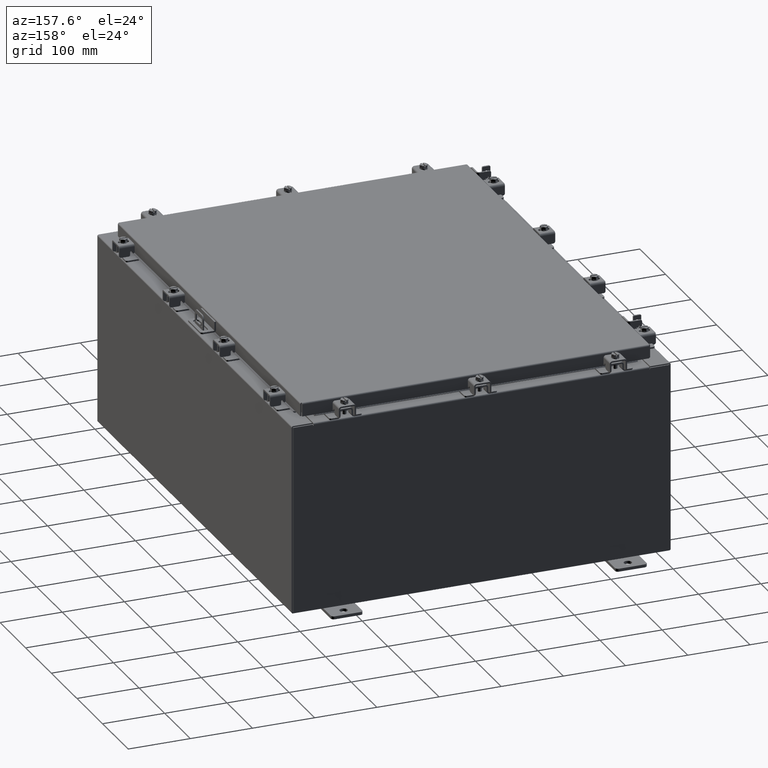
[diagram: clean part render]
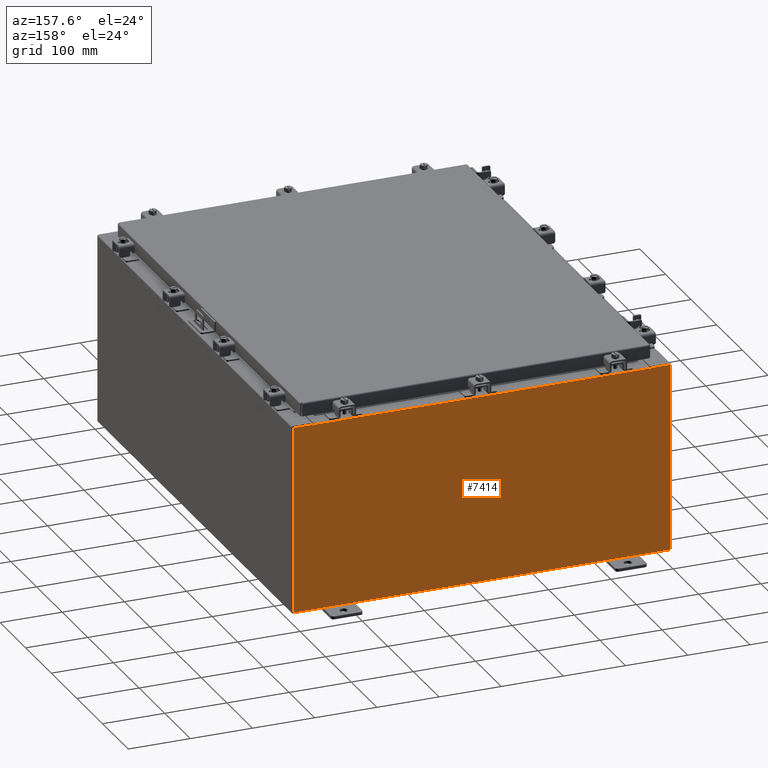
[diagram: same view with one face highlighted and labeled with its STEP entity id]
A machine part, auxiliary view. The second image highlights one B-rep face of the part: STEP entity #7414.
In plain terms, the highlighted planar face has unit normal (0, -1, 0).
Its self-contained STEP definition (entity closure, byte-faithful):
#31 = CARTESIAN_POINT ( 'NONE',  ( -11.92530000000000000, 0.0000000000000000000, -5.925299999999999100 ) ) ;
#713 = LINE ( 'NONE', #3464, #8052 ) ;
#956 = LINE ( 'NONE', #5846, #18903 ) ;
#1244 = LINE ( 'NONE', #14864, #19738 ) ;
#1439 = CARTESIAN_POINT ( 'NONE',  ( -11.92530000000000000, 0.0000000000000000000, 5.925300000000000000 ) ) ;
#1658 = DIRECTION ( 'NONE',  ( 0.0000000000000000000, 0.0000000000000000000, -1.000000000000000000 ) ) ;
#1766 = PLANE ( 'NONE',  #18966 ) ;
#1954 = ORIENTED_EDGE ( 'NONE', *, *, #8500, .T. ) ;
#2228 = LINE ( 'NONE', #1439, #16036 ) ;
#2655 = VECTOR ( 'NONE', #8615, 39.37007874015748100 ) ;
#2825 = EDGE_CURVE ( 'NONE', #16048, #18809, #9460, .T. ) ;
#3026 = EDGE_CURVE ( 'NONE', #21099, #16152, #1244, .T. ) ;
#3075 = VECTOR ( 'NONE', #10850, 39.37007874015748100 ) ;
#3145 = ORIENTED_EDGE ( 'NONE', *, *, #5564, .T. ) ;
#3464 = CARTESIAN_POINT ( 'NONE',  ( 11.92530000000000000, 0.0000000000000000000, 5.925300000000001800 ) ) ;
#3537 = VERTEX_POINT ( 'NONE', #20505 ) ;
#3575 = CARTESIAN_POINT ( 'NONE',  ( 10.63720000000000400, 0.0000000000000000000, 5.874950000000001000 ) ) ;
#3596 = CARTESIAN_POINT ( 'NONE',  ( 0.0000000000000000000, 0.0000000000000000000, 0.0000000000000000000 ) ) ;
#3662 = VERTEX_POINT ( 'NONE', #16076 ) ;
#3708 = FACE_OUTER_BOUND ( 'NONE', #15937, .T. ) ;
#3806 = CARTESIAN_POINT ( 'NONE',  ( 10.65587500000000200, 0.0000000000000000000, 5.874950000000001000 ) ) ;
#3904 = CARTESIAN_POINT ( 'NONE',  ( -10.63720000000000400, -0.0000000000000000000, 5.874950000000001000 ) ) ;
#4092 = ORIENTED_EDGE ( 'NONE', *, *, #13101, .T. ) ;
#4933 = ORIENTED_EDGE ( 'NONE', *, *, #2825, .F. ) ;
#5564 = EDGE_CURVE ( 'NONE', #15562, #17816, #956, .T. ) ;
#5614 = DIRECTION ( 'NONE',  ( 0.0000000000000000000, 0.0000000000000000000, -1.000000000000000000 ) ) ;
#5846 = CARTESIAN_POINT ( 'NONE',  ( -11.92530000000000000, 0.0000000000000000000, 5.925300000000000000 ) ) ;
#6229 = ORIENTED_EDGE ( 'NONE', *, *, #16785, .F. ) ;
#6320 = CARTESIAN_POINT ( 'NONE',  ( -10.65587500000000200, 0.0000000000000000000, 5.874950000000001000 ) ) ;
#7414 = ADVANCED_FACE ( 'NONE', ( #3708 ), #1766, .F. ) ;
#8052 = VECTOR ( 'NONE', #1658, 39.37007874015748100 ) ;
#8378 = VECTOR ( 'NONE', #19573, 39.37007874015748100 ) ;
#8500 = EDGE_CURVE ( 'NONE', #19674, #11163, #17967, .T. ) ;
#8558 = CIRCLE ( 'NONE', #9926, 0.01867499999999949400 ) ;
#8615 = DIRECTION ( 'NONE',  ( 1.000000000000000000, 0.0000000000000000000, 4.581600452255731000E-017 ) ) ;
#8920 = CARTESIAN_POINT ( 'NONE',  ( -10.67455000000000200, -0.0000000000000000000, 0.0000000000000000000 ) ) ;
#8950 = DIRECTION ( 'NONE',  ( -0.0000000000000000000, 1.000000000000000000, -0.0000000000000000000 ) ) ;
#9460 = CIRCLE ( 'NONE', #14121, 0.01867499999999949400 ) ;
#9669 = CARTESIAN_POINT ( 'NONE',  ( 10.63720000000000400, 0.0000000000000000000, 5.912300000000001000 ) ) ;
#9926 = AXIS2_PLACEMENT_3D ( 'NONE', #3806, #16373, #5614 ) ;
#10475 = DIRECTION ( 'NONE',  ( 1.000000000000000000, 0.0000000000000000000, 4.581600452255731000E-017 ) ) ;
#10850 = DIRECTION ( 'NONE',  ( -1.000000000000000000, -0.0000000000000000000, -0.0000000000000000000 ) ) ;
#10852 = DIRECTION ( 'NONE',  ( 0.0000000000000000000, -0.0000000000000000000, -1.000000000000000000 ) ) ;
#11163 = VERTEX_POINT ( 'NONE', #15492 ) ;
#11372 = EDGE_CURVE ( 'NONE', #18809, #17816, #12616, .T. ) ;
#11558 = DIRECTION ( 'NONE',  ( 0.0000000000000000000, 0.0000000000000000000, -1.000000000000000000 ) ) ;
#11571 = CARTESIAN_POINT ( 'NONE',  ( 11.92530000000000000, 0.0000000000000000000, -5.925299999999999100 ) ) ;
#11998 = ORIENTED_EDGE ( 'NONE', *, *, #17966, .T. ) ;
#12505 = ORIENTED_EDGE ( 'NONE', *, *, #14670, .F. ) ;
#12616 = LINE ( 'NONE', #8920, #8378 ) ;
#12631 = CARTESIAN_POINT ( 'NONE',  ( -10.67455000000000200, 0.0000000000000000000, 5.874950000000001000 ) ) ;
#12642 = DIRECTION ( 'NONE',  ( 0.0000000000000000000, 0.0000000000000000000, -1.000000000000000000 ) ) ;
#13101 = EDGE_CURVE ( 'NONE', #3662, #19674, #713, .T. ) ;
#13608 = VECTOR ( 'NONE', #20177, 39.37007874015748100 ) ;
#14103 = CARTESIAN_POINT ( 'NONE',  ( 10.67455000000000200, 0.0000000000000000000, 5.925300000000001800 ) ) ;
#14121 = AXIS2_PLACEMENT_3D ( 'NONE', #6320, #8950, #12642 ) ;
#14670 = EDGE_CURVE ( 'NONE', #3537, #16580, #8558, .T. ) ;
#14864 = CARTESIAN_POINT ( 'NONE',  ( -10.63720000000000400, -1.707404996040164500E-016, 5.912300000000001000 ) ) ;
#14978 = CARTESIAN_POINT ( 'NONE',  ( 10.67455000000000200, 0.0000000000000000000, 0.0000000000000000000 ) ) ;
#15138 = ORIENTED_EDGE ( 'NONE', *, *, #3026, .T. ) ;
#15492 = CARTESIAN_POINT ( 'NONE',  ( -11.92530000000000000, 0.0000000000000000000, -5.925299999999999100 ) ) ;
#15562 = VERTEX_POINT ( 'NONE', #20400 ) ;
#15841 = EDGE_CURVE ( 'NONE', #16580, #16152, #22716, .T. ) ;
#15937 = EDGE_LOOP ( 'NONE', ( #19847, #4933, #6229, #15138, #17606, #12505, #17233, #22046, #4092, #1954, #11998, #3145 ) ) ;
#15943 = DIRECTION ( 'NONE',  ( 0.0000000000000000000, 0.0000000000000000000, 1.000000000000000000 ) ) ;
#16036 = VECTOR ( 'NONE', #19386, 39.37007874015748100 ) ;
#16048 = VERTEX_POINT ( 'NONE', #3904 ) ;
#16076 = CARTESIAN_POINT ( 'NONE',  ( 11.92530000000000000, 0.0000000000000000000, 5.925300000000001800 ) ) ;
#16152 = VERTEX_POINT ( 'NONE', #9669 ) ;
#16373 = DIRECTION ( 'NONE',  ( -0.0000000000000000000, 1.000000000000000000, -0.0000000000000000000 ) ) ;
#16495 = VECTOR ( 'NONE', #11558, 39.37007874015748100 ) ;
#16580 = VERTEX_POINT ( 'NONE', #3575 ) ;
#16668 = CARTESIAN_POINT ( 'NONE',  ( -10.63720000000000400, -0.0000000000000000000, 0.0000000000000000000 ) ) ;
#16785 = EDGE_CURVE ( 'NONE', #21099, #16048, #18280, .T. ) ;
#17002 = LINE ( 'NONE', #17514, #2655 ) ;
#17233 = ORIENTED_EDGE ( 'NONE', *, *, #20171, .F. ) ;
#17514 = CARTESIAN_POINT ( 'NONE',  ( -11.92530000000000000, 0.0000000000000000000, 5.925300000000000000 ) ) ;
#17606 = ORIENTED_EDGE ( 'NONE', *, *, #15841, .F. ) ;
#17816 = VERTEX_POINT ( 'NONE', #18844 ) ;
#17966 = EDGE_CURVE ( 'NONE', #11163, #15562, #2228, .T. ) ;
#17967 = LINE ( 'NONE', #31, #3075 ) ;
#18035 = VECTOR ( 'NONE', #15943, 39.37007874015748100 ) ;
#18280 = LINE ( 'NONE', #16668, #13608 ) ;
#18809 = VERTEX_POINT ( 'NONE', #12631 ) ;
#18844 = CARTESIAN_POINT ( 'NONE',  ( -10.67455000000000200, 0.0000000000000000000, 5.925300000000000000 ) ) ;
#18903 = VECTOR ( 'NONE', #10475, 39.37007874015748100 ) ;
#18966 = AXIS2_PLACEMENT_3D ( 'NONE', #3596, #21453, #10852 ) ;
#19386 = DIRECTION ( 'NONE',  ( -0.0000000000000000000, -0.0000000000000000000, 1.000000000000000000 ) ) ;
#19573 = DIRECTION ( 'NONE',  ( 0.0000000000000000000, 0.0000000000000000000, 1.000000000000000000 ) ) ;
#19674 = VERTEX_POINT ( 'NONE', #11571 ) ;
#19738 = VECTOR ( 'NONE', #22926, 39.37007874015748100 ) ;
#19847 = ORIENTED_EDGE ( 'NONE', *, *, #11372, .F. ) ;
#20171 = EDGE_CURVE ( 'NONE', #22754, #3537, #21141, .T. ) ;
#20177 = DIRECTION ( 'NONE',  ( 0.0000000000000000000, 0.0000000000000000000, -1.000000000000000000 ) ) ;
#20400 = CARTESIAN_POINT ( 'NONE',  ( -11.92530000000000000, 0.0000000000000000000, 5.925300000000000000 ) ) ;
#20431 = CARTESIAN_POINT ( 'NONE',  ( -10.63720000000000400, -1.707404996040164500E-016, 5.912300000000001000 ) ) ;
#20505 = CARTESIAN_POINT ( 'NONE',  ( 10.67455000000000200, 0.0000000000000000000, 5.874950000000001000 ) ) ;
#21099 = VERTEX_POINT ( 'NONE', #20431 ) ;
#21141 = LINE ( 'NONE', #14978, #16495 ) ;
#21360 = EDGE_CURVE ( 'NONE', #22754, #3662, #17002, .T. ) ;
#21453 = DIRECTION ( 'NONE',  ( 0.0000000000000000000, -1.000000000000000000, 0.0000000000000000000 ) ) ;
#22046 = ORIENTED_EDGE ( 'NONE', *, *, #21360, .T. ) ;
#22716 = LINE ( 'NONE', #22936, #18035 ) ;
#22754 = VERTEX_POINT ( 'NONE', #14103 ) ;
#22926 = DIRECTION ( 'NONE',  ( 1.000000000000000000, 0.0000000000000000000, 0.0000000000000000000 ) ) ;
#22936 = CARTESIAN_POINT ( 'NONE',  ( 10.63720000000000400, 0.0000000000000000000, 0.0000000000000000000 ) ) ;